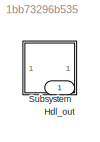
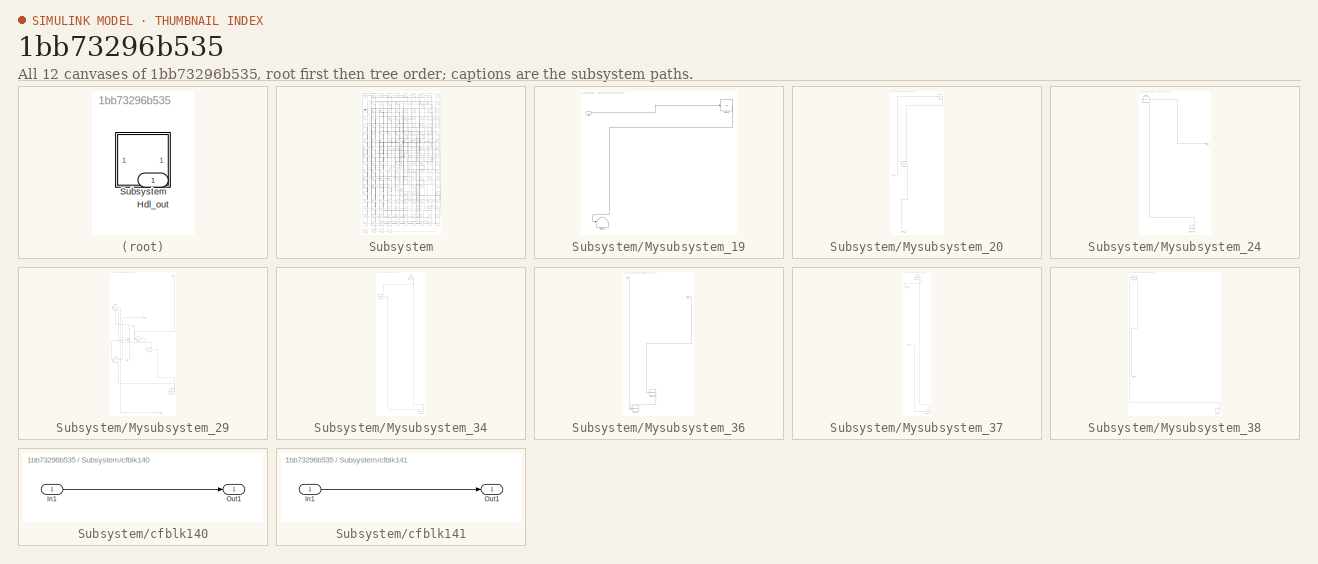
[diagram: thumbnail index - all 12 canvases of the model, root first then tree order]
MODEL slx_1bb73296b535
KIND model
CONFIG AbsTol = auto
CONFIG EnableMultiTasking = off
CONFIG FixedStep = auto
CONFIG MaxStep = auto
CONFIG MinStep = auto
CONFIG RelTol = 1e-3
CONFIG SampleTimeConstraint = Unconstrained
CONFIG SolverName = VariableStepAuto
CONFIG StartTime = 0.0
CONFIG StopTime = 10.0
BLOCK [Outport] Hdl_out
  OutDataTypeStr = uint8
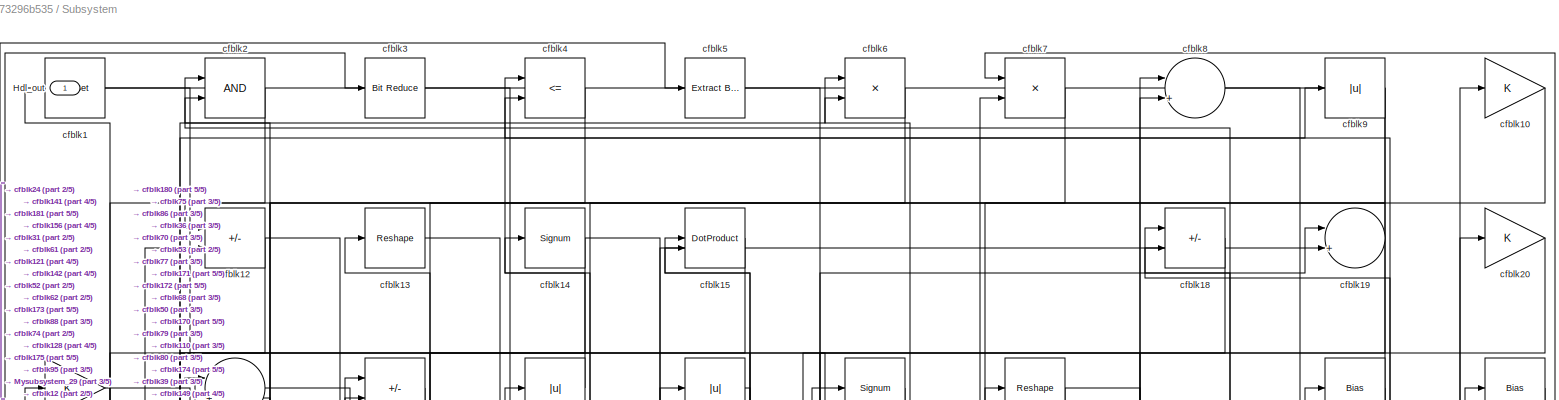
[diagram: Subsystem - part 1/5, full width, top band]
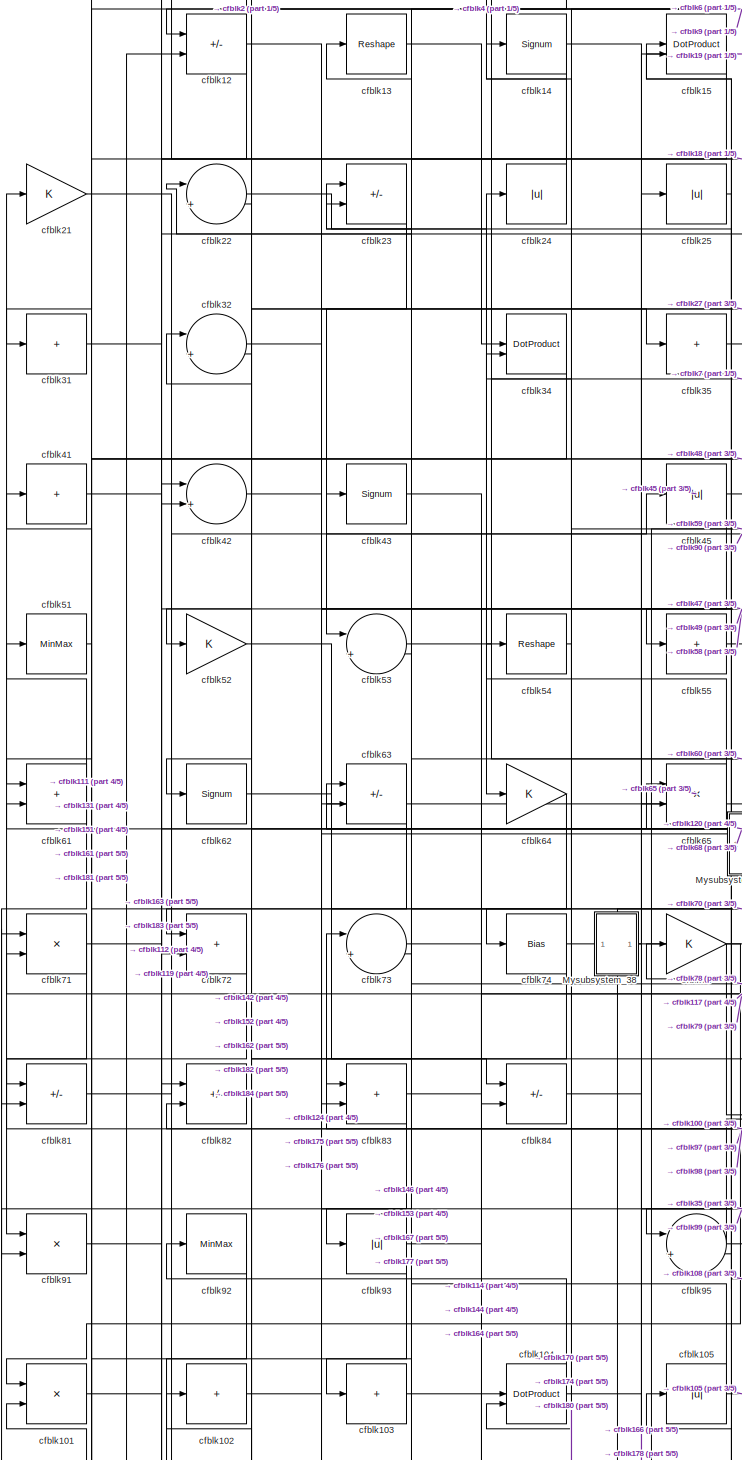
[diagram: Subsystem - part 2/5, top left region]
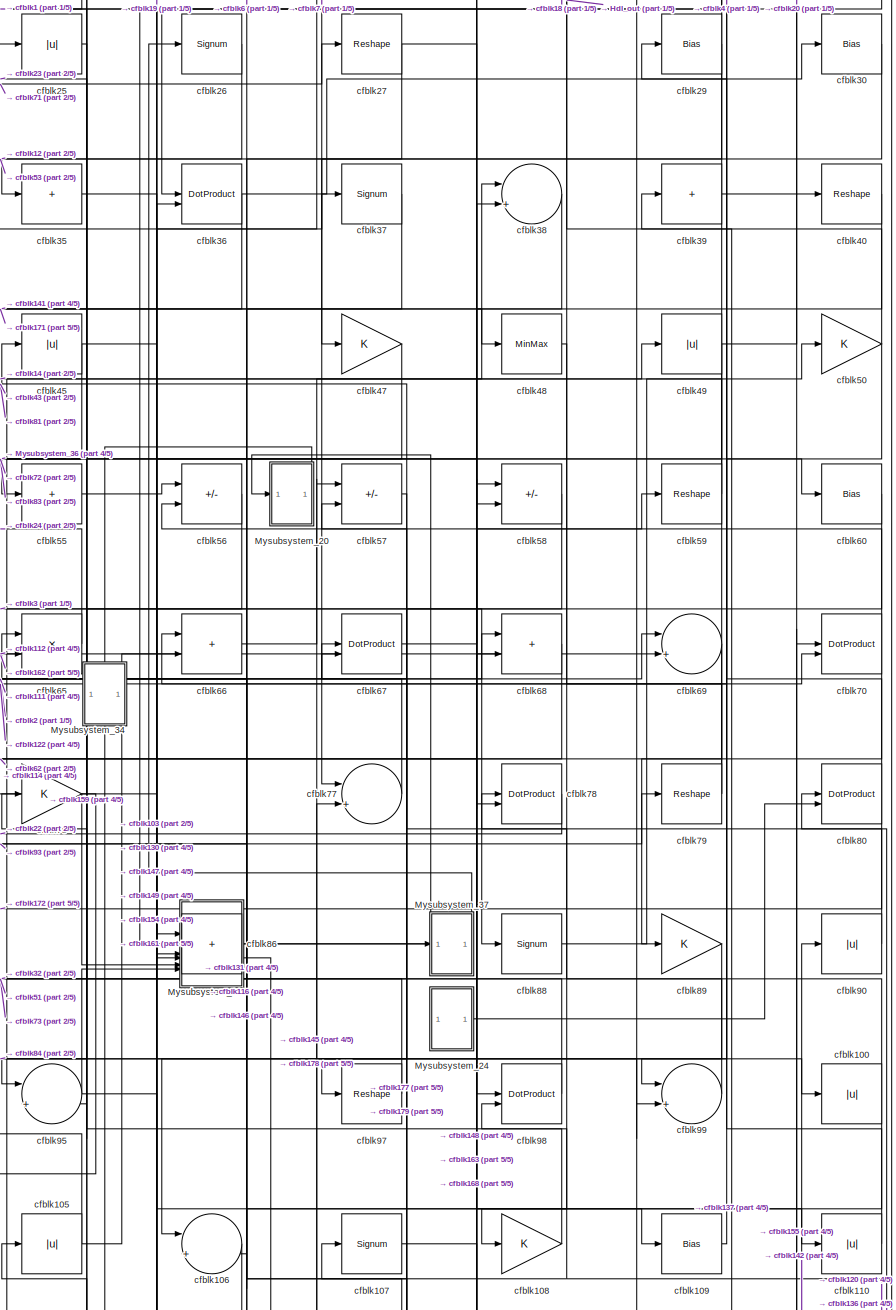
[diagram: Subsystem - part 3/5, middle right region]
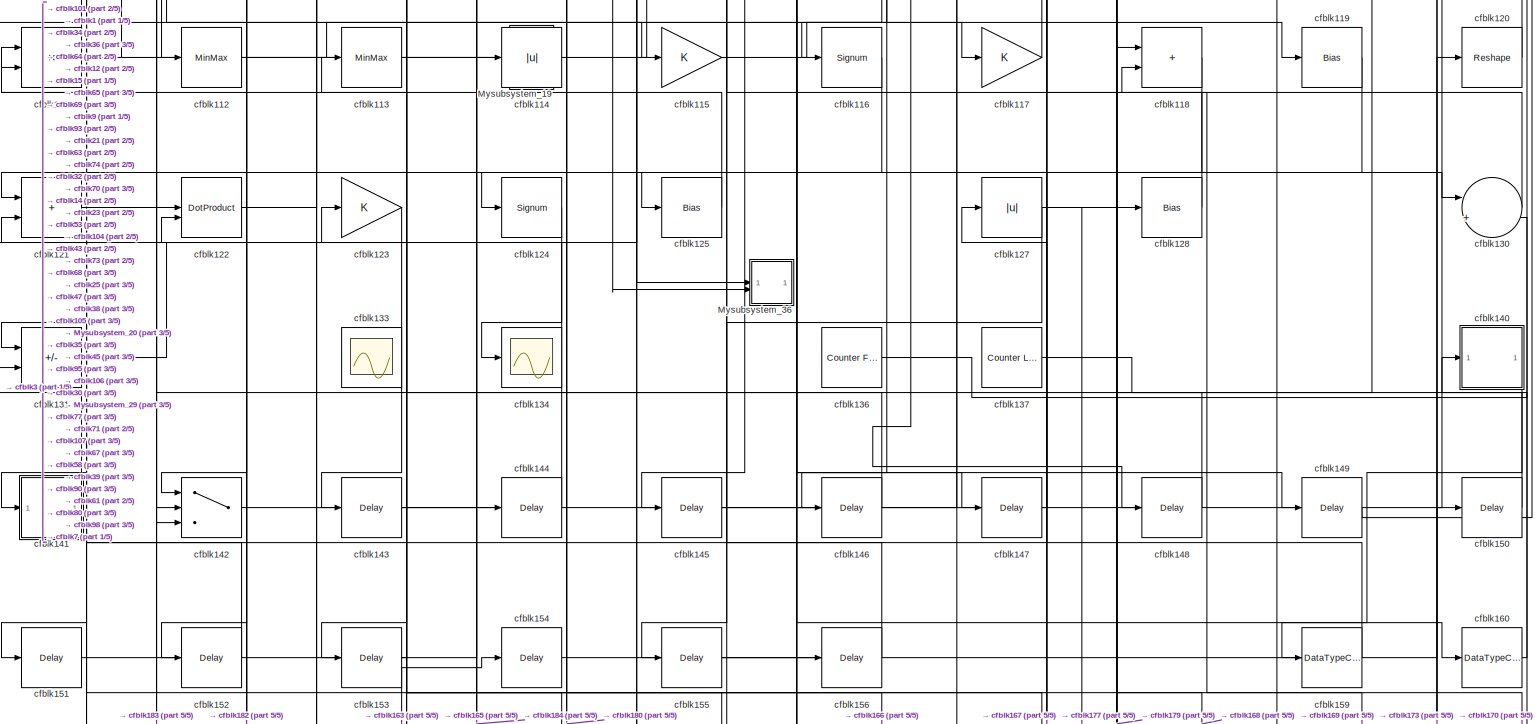
[diagram: Subsystem - part 4/5, full width, bottom band]
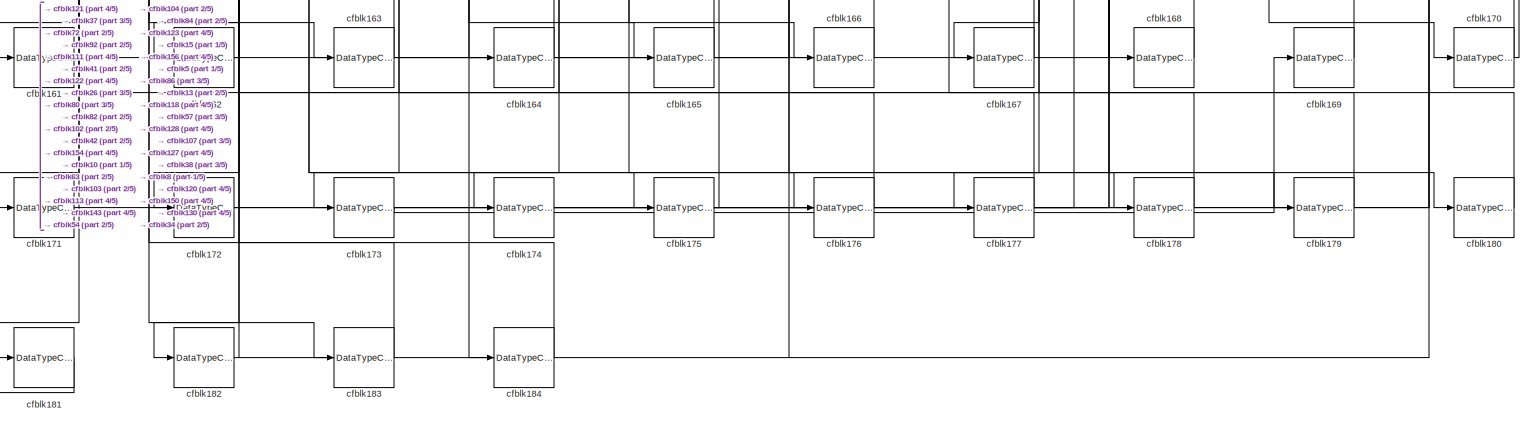
[diagram: Subsystem - part 5/5, full width, bottom band]
BLOCK [SubSystem] Subsystem
BLOCK [Outport] Subsystem/Hdl_out
  OutDataTypeStr = uint8
BLOCK [SubSystem] Subsystem/Mysubsystem_19
  RTWFcnName = Mysubsystem_19
  RTWFcnNameOpts = User specified
  RTWFileNameOpts = Use function name
  RTWSystemCode = Reusable function
  TreatAsAtomicUnit = on
BLOCK [Inport] Subsystem/Mysubsystem_19/In1
BLOCK [Terminator] Subsystem/Mysubsystem_19/cfblk132
BLOCK [Abs] Subsystem/Mysubsystem_19/cfblk96
  SaturateOnIntegerOverflow = off
BLOCK [SubSystem] Subsystem/Mysubsystem_20
  RTWFcnName = Mysubsystem_20
  RTWFcnNameOpts = User specified
  RTWFileNameOpts = Use function name
  RTWSystemCode = Reusable function
  TreatAsAtomicUnit = on
BLOCK [Inport] Subsystem/Mysubsystem_20/In1
BLOCK [Outport] Subsystem/Mysubsystem_20/Out1
BLOCK [Bias] Subsystem/Mysubsystem_20/cfblk28
  Bias = 0.0
  SaturateOnIntegerOverflow = off
BLOCK [Signum] Subsystem/Mysubsystem_20/cfblk85
BLOCK [SubSystem] Subsystem/Mysubsystem_24
  RTWFcnName = Mysubsystem_24
  RTWFcnNameOpts = User specified
  RTWFileNameOpts = Use function name
  RTWSystemCode = Reusable function
  TreatAsAtomicUnit = on
BLOCK [Outport] Subsystem/Mysubsystem_24/Out1
BLOCK [Reference] Subsystem/Mysubsystem_24/cfblk139  REF=hdlsllib/Sources/Counter
Free-Running
  SourceBlock = hdlsllib/Sources/Counter\nFree-Running
  SourceType = Counter Free-Running
BLOCK [Abs] Subsystem/Mysubsystem_24/cfblk46
  SaturateOnIntegerOverflow = off
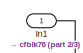
[diagram: Subsystem/Mysubsystem_29 - part 1/3, top right region]
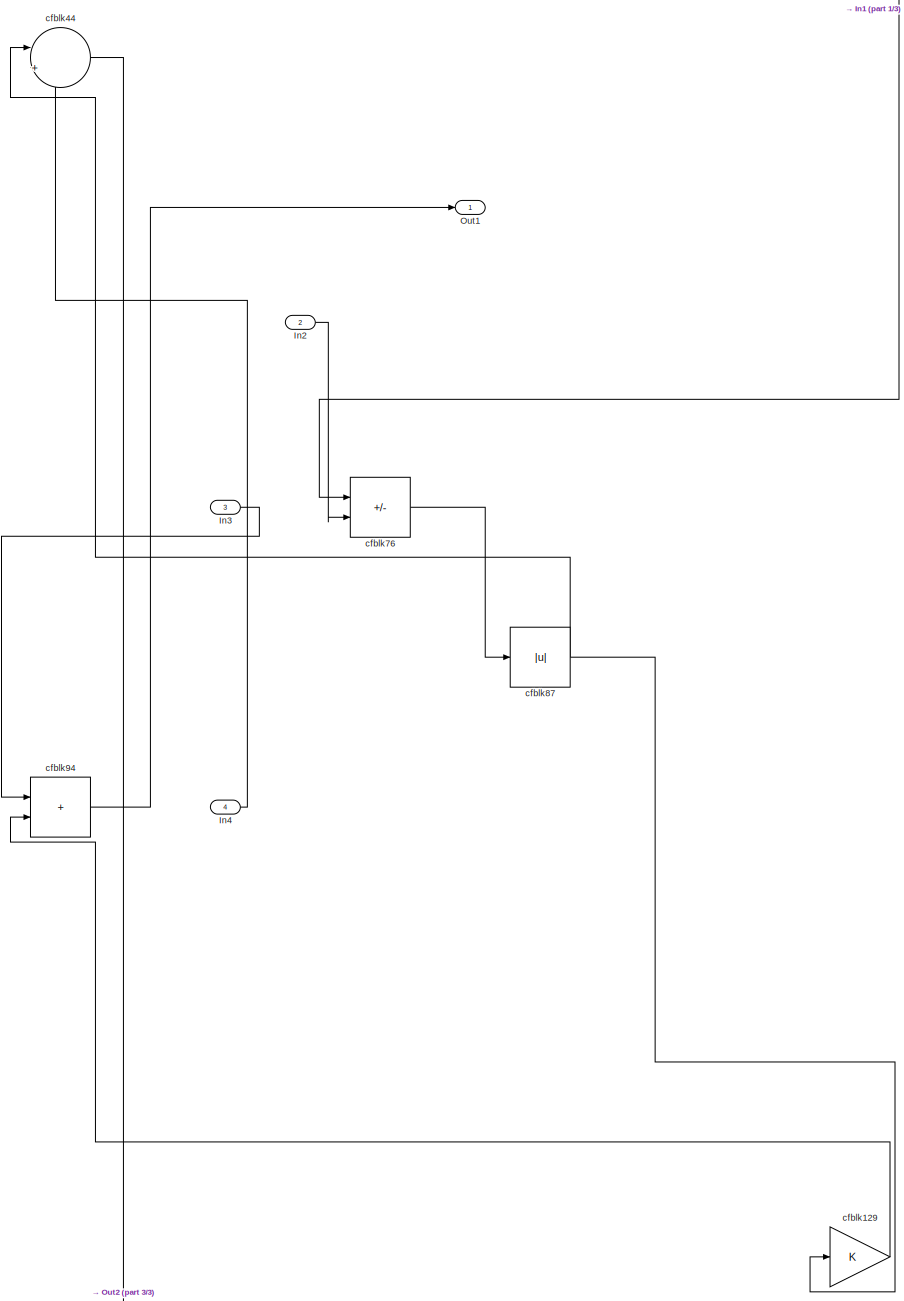
[diagram: Subsystem/Mysubsystem_29 - part 2/3, full width, middle band]
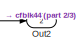
[diagram: Subsystem/Mysubsystem_29 - part 3/3, bottom right region]
BLOCK [SubSystem] Subsystem/Mysubsystem_29
  RTWFcnName = Mysubsystem_29
  RTWFcnNameOpts = User specified
  RTWFileNameOpts = Use function name
  RTWSystemCode = Reusable function
  TreatAsAtomicUnit = on
BLOCK [Inport] Subsystem/Mysubsystem_29/In1
BLOCK [Inport] Subsystem/Mysubsystem_29/In2
  Port = 2
BLOCK [Inport] Subsystem/Mysubsystem_29/In3
  Port = 3
BLOCK [Inport] Subsystem/Mysubsystem_29/In4
  Port = 4
BLOCK [Outport] Subsystem/Mysubsystem_29/Out1
BLOCK [Outport] Subsystem/Mysubsystem_29/Out2
  Port = 2
BLOCK [Gain] Subsystem/Mysubsystem_29/cfblk129
BLOCK [Sum] Subsystem/Mysubsystem_29/cfblk44
  Inputs = |++
BLOCK [Sum] Subsystem/Mysubsystem_29/cfblk76
  IconShape = rectangular
  Inputs = +-
BLOCK [Abs] Subsystem/Mysubsystem_29/cfblk87
  SaturateOnIntegerOverflow = off
BLOCK [Sum] Subsystem/Mysubsystem_29/cfblk94
  IconShape = rectangular
BLOCK [SubSystem] Subsystem/Mysubsystem_34
  RTWFcnName = Mysubsystem_34
  RTWFcnNameOpts = User specified
  RTWFileNameOpts = Use function name
  RTWSystemCode = Reusable function
  TreatAsAtomicUnit = on
BLOCK [Delay] Subsystem/Mysubsystem_34/cfblk157
  InputPortMap = u0
  SampleTime = 1
BLOCK [MinMax] Subsystem/Mysubsystem_34/cfblk16
BLOCK [Signum] Subsystem/Mysubsystem_34/cfblk33
BLOCK [SubSystem] Subsystem/Mysubsystem_36
  RTWFcnName = Mysubsystem_36
  RTWFcnNameOpts = User specified
  RTWFileNameOpts = Use function name
  RTWSystemCode = Reusable function
  TreatAsAtomicUnit = on
BLOCK [Inport] Subsystem/Mysubsystem_36/In1
BLOCK [Inport] Subsystem/Mysubsystem_36/In2
  Port = 2
BLOCK [Signum] Subsystem/Mysubsystem_36/cfblk126
BLOCK [Record] Subsystem/Mysubsystem_36/cfblk135
  CompatibilityTag = XY
  FileSettingsInternal = {"entries":[{"content":{"excelSettings":{"content":{},"type":"Streamout.ExcelSettings"}},"type":"Streamout.FileSettingStorage","uuid":""}],"packageUris":["http:\/\/schema.mathworks.com\/mf0\/streamout_blocks\/R2020a"],"version":"1.0"}
  Layout = [1 1]
  SignalsInternal = {"entries":[{"content":{},"type":"RecordBlkView.InputSignals","uuid":""}],"packageUris":["http:\/\/schema.mathworks.com\/mf0\/streamout_blocks\/R2020a"],"version":"1.0"}
  VisualizationBindings = {"xyplotplugin":{"info":[{"series":[],"subplotID":1}]}}
  st = -1
BLOCK [SubSystem] Subsystem/Mysubsystem_37
  RTWFcnName = Mysubsystem_37
  RTWFcnNameOpts = User specified
  RTWFileNameOpts = Use function name
  RTWSystemCode = Reusable function
  TreatAsAtomicUnit = on
BLOCK [Inport] Subsystem/Mysubsystem_37/In1
BLOCK [Outport] Subsystem/Mysubsystem_37/Out1
BLOCK [Delay] Subsystem/Mysubsystem_37/cfblk158
  InputPortMap = u0
  SampleTime = 1
BLOCK [Reshape] Subsystem/Mysubsystem_37/cfblk17
BLOCK [SubSystem] Subsystem/Mysubsystem_38
  RTWFcnName = Mysubsystem_38
  RTWFcnNameOpts = User specified
  RTWFileNameOpts = Use function name
  RTWSystemCode = Reusable function
  TreatAsAtomicUnit = on
BLOCK [Outport] Subsystem/Mysubsystem_38/Out1
BLOCK [Reshape] Subsystem/Mysubsystem_38/cfblk11
BLOCK [Constant] Subsystem/Mysubsystem_38/cfblk138
  SampleTime = -1
BLOCK [Reference] Subsystem/cfblk1  REF=simulink/Logic and Bit
Operations/Bit Set
  LibrarySourceBlock = hdlsllib/Logic and Bit\nOperations/Bit Set
  SourceBlock = simulink/Logic and Bit\nOperations/Bit Set
  SourceType = Bit Set
BLOCK [Gain] Subsystem/cfblk10
  OutDataTypeStr = uint8
BLOCK [Abs] Subsystem/cfblk100
  OutDataTypeStr = uint8
  SaturateOnIntegerOverflow = off
BLOCK [Product] Subsystem/cfblk101
  Inputs = */
  OutDataTypeStr = uint8
  RndMeth = Zero
  SaturateOnIntegerOverflow = on
BLOCK [Sum] Subsystem/cfblk102
  IconShape = rectangular
  Inputs = +
  OutDataTypeStr = uint8
BLOCK [Sum] Subsystem/cfblk103
  IconShape = rectangular
  Inputs = +
  OutDataTypeStr = uint8
BLOCK [DotProduct] Subsystem/cfblk104
  OutDataTypeStr = uint8
BLOCK [Abs] Subsystem/cfblk105
  OutDataTypeStr = uint8
  SaturateOnIntegerOverflow = off
BLOCK [Sum] Subsystem/cfblk106
  Inputs = |++
  OutDataTypeStr = uint8
BLOCK [Signum] Subsystem/cfblk107
BLOCK [Gain] Subsystem/cfblk108
  OutDataTypeStr = uint8
BLOCK [Bias] Subsystem/cfblk109
  Bias = 0.0
  SaturateOnIntegerOverflow = off
BLOCK [Abs] Subsystem/cfblk110
  OutDataTypeStr = uint8
  SaturateOnIntegerOverflow = off
BLOCK [Product] Subsystem/cfblk111
  Inputs = */
  OutDataTypeStr = uint8
  RndMeth = Zero
  SaturateOnIntegerOverflow = on
BLOCK [MinMax] Subsystem/cfblk112
  OutDataTypeStr = uint8
BLOCK [MinMax] Subsystem/cfblk113
  OutDataTypeStr = uint8
BLOCK [Abs] Subsystem/cfblk114
  OutDataTypeStr = uint8
  SaturateOnIntegerOverflow = off
BLOCK [Gain] Subsystem/cfblk115
  OutDataTypeStr = uint8
BLOCK [Signum] Subsystem/cfblk116
BLOCK [Gain] Subsystem/cfblk117
  OutDataTypeStr = uint8
BLOCK [Sum] Subsystem/cfblk118
  IconShape = rectangular
  OutDataTypeStr = uint8
BLOCK [Bias] Subsystem/cfblk119
  Bias = 0.0
  SaturateOnIntegerOverflow = off
BLOCK [Sum] Subsystem/cfblk12
  IconShape = rectangular
  Inputs = +-
  OutDataTypeStr = uint8
BLOCK [Reshape] Subsystem/cfblk120
BLOCK [Sum] Subsystem/cfblk121
  IconShape = rectangular
  OutDataTypeStr = uint8
BLOCK [DotProduct] Subsystem/cfblk122
  OutDataTypeStr = uint8
BLOCK [Gain] Subsystem/cfblk123
  OutDataTypeStr = uint8
BLOCK [Signum] Subsystem/cfblk124
BLOCK [Bias] Subsystem/cfblk125
  Bias = 0.0
  SaturateOnIntegerOverflow = off
BLOCK [Abs] Subsystem/cfblk127
  OutDataTypeStr = uint8
  SaturateOnIntegerOverflow = off
BLOCK [Bias] Subsystem/cfblk128
  Bias = 0.0
  SaturateOnIntegerOverflow = off
BLOCK [Reshape] Subsystem/cfblk13
BLOCK [Sum] Subsystem/cfblk130
  Inputs = |++
  OutDataTypeStr = uint8
BLOCK [Sum] Subsystem/cfblk131
  IconShape = rectangular
  Inputs = +-
  OutDataTypeStr = uint8
BLOCK [Scope] Subsystem/cfblk133
  Floating = on
  NumInputPorts = 1
  ScopeSpecificationString = Simulink.scopes.TimeScopeBlockCfg('CurrentConfiguration', extmgr.ConfigurationSet(extmgr.Configuration('Core','General UI',true,'FigureColor',[0.156862745098039 0.156862745098039 0.156862745098039]),extmgr.Configuration('Core','Source UI',true),extmgr.Configuration('Sources','WiredSimulink',true,'DataLoggingVariableName','ScopeData1','DataLoggingSaveFormat','StructureWithTime','DataLoggingLimitDat...<+2713ch>
BLOCK [Scope] Subsystem/cfblk134
  Floating = off
  NumInputPorts = 1
  ScopeSpecificationString = Simulink.scopes.TimeScopeBlockCfg('CurrentConfiguration', extmgr.ConfigurationSet(extmgr.Configuration('Core','General UI',true),extmgr.Configuration('Core','Source UI',true),extmgr.Configuration('Sources','WiredSimulink',true,'DataLoggingSaveFormat','Array','DataLoggingLimitDataPoints',true,'DataLoggingDecimation','1'),extmgr.Configuration('Visuals','Time Domain',true,'DisplayPropertyDefaults',st...<+829ch>
BLOCK [Reference] Subsystem/cfblk136  REF=hdlsllib/Sources/Counter
Free-Running
  SourceBlock = hdlsllib/Sources/Counter\nFree-Running
  SourceType = Counter Free-Running
BLOCK [Reference] Subsystem/cfblk137  REF=hdlsllib/Sources/Counter
Limited
  SourceBlock = hdlsllib/Sources/Counter\nLimited
  SourceType = Counter Limited
BLOCK [Signum] Subsystem/cfblk14
BLOCK [SubSystem] Subsystem/cfblk140
  LibrarySourceBlock = hdlsllib/Ports &\nSubsystems/Subsystem
BLOCK [Inport] Subsystem/cfblk140/In1
BLOCK [Outport] Subsystem/cfblk140/Out1
BLOCK [SubSystem] Subsystem/cfblk141
  LibrarySourceBlock = hdlsllib/Ports &\nSubsystems/Subsystem
BLOCK [Inport] Subsystem/cfblk141/In1
BLOCK [Outport] Subsystem/cfblk141/Out1
BLOCK [Switch] Subsystem/cfblk142
  InputSameDT = off
  OutDataTypeStr = uint8
  SaturateOnIntegerOverflow = off
BLOCK [Delay] Subsystem/cfblk143
  InputPortMap = u0
  SampleTime = 1
BLOCK [Delay] Subsystem/cfblk144
  InputPortMap = u0
  SampleTime = 1
BLOCK [Delay] Subsystem/cfblk145
  InputPortMap = u0
  SampleTime = 1
BLOCK [Delay] Subsystem/cfblk146
  InputPortMap = u0
  SampleTime = 1
BLOCK [Delay] Subsystem/cfblk147
  InputPortMap = u0
  SampleTime = 1
BLOCK [Delay] Subsystem/cfblk148
  InputPortMap = u0
  SampleTime = 1
BLOCK [Delay] Subsystem/cfblk149
  InputPortMap = u0
  SampleTime = 1
BLOCK [DotProduct] Subsystem/cfblk15
  OutDataTypeStr = uint8
BLOCK [Delay] Subsystem/cfblk150
  InputPortMap = u0
  SampleTime = 1
BLOCK [Delay] Subsystem/cfblk151
  InputPortMap = u0
  SampleTime = 1
BLOCK [Delay] Subsystem/cfblk152
  InputPortMap = u0
  SampleTime = 1
BLOCK [Delay] Subsystem/cfblk153
  InputPortMap = u0
  SampleTime = 1
BLOCK [Delay] Subsystem/cfblk154
  InputPortMap = u0
  SampleTime = 1
BLOCK [Delay] Subsystem/cfblk155
  InputPortMap = u0
  SampleTime = 1
BLOCK [Delay] Subsystem/cfblk156
  InputPortMap = u0
  SampleTime = 1
BLOCK [DataTypeConversion] Subsystem/cfblk159
  OutDataTypeStr = uint8
  RndMeth = Floor
  SaturateOnIntegerOverflow = off
BLOCK [DataTypeConversion] Subsystem/cfblk160
  OutDataTypeStr = uint8
  RndMeth = Floor
  SaturateOnIntegerOverflow = off
BLOCK [DataTypeConversion] Subsystem/cfblk161
  OutDataTypeStr = uint8
  RndMeth = Floor
  SaturateOnIntegerOverflow = off
BLOCK [DataTypeConversion] Subsystem/cfblk162
  OutDataTypeStr = uint8
  RndMeth = Floor
  SaturateOnIntegerOverflow = off
BLOCK [DataTypeConversion] Subsystem/cfblk163
  OutDataTypeStr = uint8
  RndMeth = Floor
  SaturateOnIntegerOverflow = off
BLOCK [DataTypeConversion] Subsystem/cfblk164
  OutDataTypeStr = uint8
  RndMeth = Floor
  SaturateOnIntegerOverflow = off
BLOCK [DataTypeConversion] Subsystem/cfblk165
  OutDataTypeStr = uint8
  RndMeth = Floor
  SaturateOnIntegerOverflow = off
BLOCK [DataTypeConversion] Subsystem/cfblk166
  OutDataTypeStr = uint8
  RndMeth = Floor
  SaturateOnIntegerOverflow = off
BLOCK [DataTypeConversion] Subsystem/cfblk167
  OutDataTypeStr = uint8
  RndMeth = Floor
  SaturateOnIntegerOverflow = off
BLOCK [DataTypeConversion] Subsystem/cfblk168
  OutDataTypeStr = uint8
  RndMeth = Floor
  SaturateOnIntegerOverflow = off
BLOCK [DataTypeConversion] Subsystem/cfblk169
  OutDataTypeStr = uint8
  RndMeth = Floor
  SaturateOnIntegerOverflow = off
BLOCK [DataTypeConversion] Subsystem/cfblk170
  OutDataTypeStr = uint8
  RndMeth = Floor
  SaturateOnIntegerOverflow = off
BLOCK [DataTypeConversion] Subsystem/cfblk171
  OutDataTypeStr = uint8
  RndMeth = Floor
  SaturateOnIntegerOverflow = off
BLOCK [DataTypeConversion] Subsystem/cfblk172
  OutDataTypeStr = uint8
  RndMeth = Floor
  SaturateOnIntegerOverflow = off
BLOCK [DataTypeConversion] Subsystem/cfblk173
  OutDataTypeStr = uint8
  RndMeth = Floor
  SaturateOnIntegerOverflow = off
BLOCK [DataTypeConversion] Subsystem/cfblk174
  OutDataTypeStr = uint8
  RndMeth = Floor
  SaturateOnIntegerOverflow = off
BLOCK [DataTypeConversion] Subsystem/cfblk175
  OutDataTypeStr = uint8
  RndMeth = Floor
  SaturateOnIntegerOverflow = off
BLOCK [DataTypeConversion] Subsystem/cfblk176
  OutDataTypeStr = uint8
  RndMeth = Floor
  SaturateOnIntegerOverflow = off
BLOCK [DataTypeConversion] Subsystem/cfblk177
  OutDataTypeStr = uint8
  RndMeth = Floor
  SaturateOnIntegerOverflow = off
BLOCK [DataTypeConversion] Subsystem/cfblk178
  OutDataTypeStr = uint8
  RndMeth = Floor
  SaturateOnIntegerOverflow = off
BLOCK [DataTypeConversion] Subsystem/cfblk179
  OutDataTypeStr = uint8
  RndMeth = Floor
  SaturateOnIntegerOverflow = off
BLOCK [Sum] Subsystem/cfblk18
  IconShape = rectangular
  Inputs = +-
  OutDataTypeStr = uint8
BLOCK [DataTypeConversion] Subsystem/cfblk180
  OutDataTypeStr = uint8
  RndMeth = Floor
  SaturateOnIntegerOverflow = off
BLOCK [DataTypeConversion] Subsystem/cfblk181
  OutDataTypeStr = uint8
  RndMeth = Floor
  SaturateOnIntegerOverflow = off
BLOCK [DataTypeConversion] Subsystem/cfblk182
  OutDataTypeStr = uint8
  RndMeth = Floor
  SaturateOnIntegerOverflow = off
BLOCK [DataTypeConversion] Subsystem/cfblk183
  OutDataTypeStr = uint8
  RndMeth = Floor
  SaturateOnIntegerOverflow = off
BLOCK [DataTypeConversion] Subsystem/cfblk184
  OutDataTypeStr = uint8
  RndMeth = Floor
  SaturateOnIntegerOverflow = off
BLOCK [Sum] Subsystem/cfblk19
  Inputs = |++
  OutDataTypeStr = uint8
BLOCK [Logic] Subsystem/cfblk2
  AllPortsSameDT = off
  OutDataTypeStr = boolean
BLOCK [Gain] Subsystem/cfblk20
  OutDataTypeStr = uint8
BLOCK [Gain] Subsystem/cfblk21
  OutDataTypeStr = uint8
BLOCK [Sum] Subsystem/cfblk22
  Inputs = |++
  OutDataTypeStr = uint8
BLOCK [Sum] Subsystem/cfblk23
  IconShape = rectangular
  Inputs = +-
  OutDataTypeStr = uint8
BLOCK [Abs] Subsystem/cfblk24
  OutDataTypeStr = uint8
  SaturateOnIntegerOverflow = off
BLOCK [Abs] Subsystem/cfblk25
  OutDataTypeStr = uint8
  SaturateOnIntegerOverflow = off
BLOCK [Signum] Subsystem/cfblk26
BLOCK [Reshape] Subsystem/cfblk27
BLOCK [Bias] Subsystem/cfblk29
  Bias = 0.0
  SaturateOnIntegerOverflow = off
BLOCK [Reference] Subsystem/cfblk3  REF=hdlsllib/Logic and Bit
Operations/Bit Reduce
  SourceBlock = hdlsllib/Logic and Bit\nOperations/Bit Reduce
  SourceType = Bit Reduce
BLOCK [Bias] Subsystem/cfblk30
  Bias = 0.0
  SaturateOnIntegerOverflow = off
BLOCK [Sum] Subsystem/cfblk31
  IconShape = rectangular
  Inputs = +
  OutDataTypeStr = uint8
BLOCK [Sum] Subsystem/cfblk32
  Inputs = |++
  OutDataTypeStr = uint8
BLOCK [DotProduct] Subsystem/cfblk34
  OutDataTypeStr = uint8
BLOCK [Sum] Subsystem/cfblk35
  IconShape = rectangular
  Inputs = +
  OutDataTypeStr = uint8
BLOCK [DotProduct] Subsystem/cfblk36
  OutDataTypeStr = uint8
BLOCK [Signum] Subsystem/cfblk37
BLOCK [Sum] Subsystem/cfblk38
  Inputs = |++
  OutDataTypeStr = uint8
BLOCK [Sum] Subsystem/cfblk39
  IconShape = rectangular
  Inputs = +
  OutDataTypeStr = uint8
BLOCK [RelationalOperator] Subsystem/cfblk4
  InputSameDT = off
  Operator = <=
  OutDataTypeStr = boolean
BLOCK [Reshape] Subsystem/cfblk40
BLOCK [Sum] Subsystem/cfblk41
  IconShape = rectangular
  Inputs = +
  OutDataTypeStr = uint8
BLOCK [Sum] Subsystem/cfblk42
  Inputs = |++
  OutDataTypeStr = uint8
BLOCK [Signum] Subsystem/cfblk43
BLOCK [Abs] Subsystem/cfblk45
  OutDataTypeStr = uint8
  SaturateOnIntegerOverflow = off
BLOCK [Gain] Subsystem/cfblk47
  OutDataTypeStr = uint8
BLOCK [MinMax] Subsystem/cfblk48
  OutDataTypeStr = uint8
BLOCK [Abs] Subsystem/cfblk49
  OutDataTypeStr = uint8
  SaturateOnIntegerOverflow = off
BLOCK [Reference] Subsystem/cfblk5  REF=simulink/Logic and Bit
Operations/Extract Bits
  LibrarySourceBlock = hdlsllib/Logic and Bit\nOperations/Extract Bits
  SourceBlock = simulink/Logic and Bit\nOperations/Extract Bits
  SourceType = Extract Bits
BLOCK [Gain] Subsystem/cfblk50
  OutDataTypeStr = uint8
BLOCK [MinMax] Subsystem/cfblk51
  OutDataTypeStr = uint8
BLOCK [Gain] Subsystem/cfblk52
  OutDataTypeStr = uint8
BLOCK [Sum] Subsystem/cfblk53
  Inputs = |++
  OutDataTypeStr = uint8
BLOCK [Reshape] Subsystem/cfblk54
BLOCK [Sum] Subsystem/cfblk55
  IconShape = rectangular
  Inputs = +
  OutDataTypeStr = uint8
BLOCK [Sum] Subsystem/cfblk56
  IconShape = rectangular
  Inputs = +-
  OutDataTypeStr = uint8
BLOCK [Sum] Subsystem/cfblk57
  IconShape = rectangular
  Inputs = +-
  OutDataTypeStr = uint8
BLOCK [Sum] Subsystem/cfblk58
  IconShape = rectangular
  Inputs = +-
  OutDataTypeStr = uint8
BLOCK [Reshape] Subsystem/cfblk59
BLOCK [Product] Subsystem/cfblk6
  Inputs = */
  OutDataTypeStr = uint8
  RndMeth = Zero
  SaturateOnIntegerOverflow = on
BLOCK [Bias] Subsystem/cfblk60
  Bias = 0.0
  SaturateOnIntegerOverflow = off
BLOCK [Sum] Subsystem/cfblk61
  IconShape = rectangular
  OutDataTypeStr = uint8
BLOCK [Signum] Subsystem/cfblk62
BLOCK [Sum] Subsystem/cfblk63
  IconShape = rectangular
  Inputs = +-
  OutDataTypeStr = uint8
BLOCK [Gain] Subsystem/cfblk64
  OutDataTypeStr = uint8
BLOCK [Product] Subsystem/cfblk65
  Inputs = */
  OutDataTypeStr = uint8
  RndMeth = Zero
  SaturateOnIntegerOverflow = on
BLOCK [Sum] Subsystem/cfblk66
  IconShape = rectangular
  OutDataTypeStr = uint8
BLOCK [DotProduct] Subsystem/cfblk67
  OutDataTypeStr = uint8
BLOCK [Sum] Subsystem/cfblk68
  IconShape = rectangular
  OutDataTypeStr = uint8
BLOCK [Sum] Subsystem/cfblk69
  Inputs = |++
  OutDataTypeStr = uint8
BLOCK [Product] Subsystem/cfblk7
  Inputs = */
  OutDataTypeStr = uint8
  RndMeth = Zero
  SaturateOnIntegerOverflow = on
BLOCK [DotProduct] Subsystem/cfblk70
  OutDataTypeStr = uint8
BLOCK [Product] Subsystem/cfblk71
  Inputs = */
  OutDataTypeStr = uint8
  RndMeth = Zero
  SaturateOnIntegerOverflow = on
BLOCK [Sum] Subsystem/cfblk72
  IconShape = rectangular
  OutDataTypeStr = uint8
BLOCK [Sum] Subsystem/cfblk73
  Inputs = |++
  OutDataTypeStr = uint8
BLOCK [Bias] Subsystem/cfblk74
  Bias = 0.0
  SaturateOnIntegerOverflow = off
BLOCK [Gain] Subsystem/cfblk75
  OutDataTypeStr = uint8
BLOCK [Sum] Subsystem/cfblk77
  Inputs = |++
  OutDataTypeStr = uint8
BLOCK [DotProduct] Subsystem/cfblk78
  OutDataTypeStr = uint8
BLOCK [Reshape] Subsystem/cfblk79
BLOCK [Sum] Subsystem/cfblk8
  Inputs = |++
  OutDataTypeStr = uint8
BLOCK [DotProduct] Subsystem/cfblk80
  OutDataTypeStr = uint8
BLOCK [Sum] Subsystem/cfblk81
  IconShape = rectangular
  Inputs = +-
  OutDataTypeStr = uint8
BLOCK [Sum] Subsystem/cfblk82
  IconShape = rectangular
  Inputs = +-
  OutDataTypeStr = uint8
BLOCK [Sum] Subsystem/cfblk83
  IconShape = rectangular
  OutDataTypeStr = uint8
BLOCK [Sum] Subsystem/cfblk84
  IconShape = rectangular
  Inputs = +-
  OutDataTypeStr = uint8
BLOCK [Sum] Subsystem/cfblk86
  IconShape = rectangular
  OutDataTypeStr = uint8
BLOCK [Signum] Subsystem/cfblk88
BLOCK [Gain] Subsystem/cfblk89
  OutDataTypeStr = uint8
BLOCK [Abs] Subsystem/cfblk9
  OutDataTypeStr = uint8
  SaturateOnIntegerOverflow = off
BLOCK [Abs] Subsystem/cfblk90
  OutDataTypeStr = uint8
  SaturateOnIntegerOverflow = off
BLOCK [Product] Subsystem/cfblk91
  Inputs = */
  OutDataTypeStr = uint8
  RndMeth = Zero
  SaturateOnIntegerOverflow = on
BLOCK [MinMax] Subsystem/cfblk92
  OutDataTypeStr = uint8
BLOCK [Abs] Subsystem/cfblk93
  OutDataTypeStr = uint8
  SaturateOnIntegerOverflow = off
BLOCK [Sum] Subsystem/cfblk95
  Inputs = |++
  OutDataTypeStr = uint8
BLOCK [Reshape] Subsystem/cfblk97
BLOCK [DotProduct] Subsystem/cfblk98
  OutDataTypeStr = uint8
BLOCK [Sum] Subsystem/cfblk99
  Inputs = |++
  OutDataTypeStr = uint8
LINE Subsystem/Mysubsystem_19/In1:1 -> Subsystem/Mysubsystem_19/cfblk96:1
LINE Subsystem/Mysubsystem_19/cfblk96:1 -> Subsystem/Mysubsystem_19/cfblk132:1
LINE Subsystem/Mysubsystem_20/In1:1 -> Subsystem/Mysubsystem_20/cfblk28:1
LINE Subsystem/Mysubsystem_20/cfblk28:1 -> Subsystem/Mysubsystem_20/cfblk85:1
LINE Subsystem/Mysubsystem_20/cfblk85:1 -> Subsystem/Mysubsystem_20/Out1:1
LINE Subsystem/Mysubsystem_20:1 -> Subsystem/cfblk145:1
LINE Subsystem/Mysubsystem_24/cfblk139:1 -> Subsystem/Mysubsystem_24/cfblk46:1
LINE Subsystem/Mysubsystem_24/cfblk46:1 -> Subsystem/Mysubsystem_24/Out1:1
LINE Subsystem/Mysubsystem_24:1 -> Subsystem/cfblk80:2
LINE Subsystem/Mysubsystem_29/In1:1 -> Subsystem/Mysubsystem_29/cfblk76:1
LINE Subsystem/Mysubsystem_29/In2:1 -> Subsystem/Mysubsystem_29/cfblk76:2
LINE Subsystem/Mysubsystem_29/In3:1 -> Subsystem/Mysubsystem_29/cfblk94:1
LINE Subsystem/Mysubsystem_29/In4:1 -> Subsystem/Mysubsystem_29/cfblk44:2
LINE Subsystem/Mysubsystem_29/cfblk129:1 -> Subsystem/Mysubsystem_29/cfblk94:2
LINE Subsystem/Mysubsystem_29/cfblk44:1 -> Subsystem/Mysubsystem_29/Out2:1
LINE Subsystem/Mysubsystem_29/cfblk76:1 -> Subsystem/Mysubsystem_29/cfblk87:1
NET Subsystem/Mysubsystem_29/cfblk87:1 -> Subsystem/Mysubsystem_29/cfblk129:1, Subsystem/Mysubsystem_29/cfblk44:1
LINE Subsystem/Mysubsystem_29/cfblk94:1 -> Subsystem/Mysubsystem_29/Out1:1
LINE Subsystem/Mysubsystem_29:1 -> Subsystem/Mysubsystem_20:1
LINE Subsystem/Mysubsystem_29:2 -> Subsystem/cfblk148:1
LINE Subsystem/Mysubsystem_34/cfblk157:1 -> Subsystem/Mysubsystem_34/cfblk16:1
LINE Subsystem/Mysubsystem_34/cfblk16:1 -> Subsystem/Mysubsystem_34/cfblk33:1
LINE Subsystem/Mysubsystem_34/cfblk33:1 -> Subsystem/Mysubsystem_34/cfblk157:1
LINE Subsystem/Mysubsystem_36/In1:1 -> Subsystem/Mysubsystem_36/cfblk135:2
LINE Subsystem/Mysubsystem_36/In2:1 -> Subsystem/Mysubsystem_36/cfblk126:1
LINE Subsystem/Mysubsystem_36/cfblk126:1 -> Subsystem/Mysubsystem_36/cfblk135:1
LINE Subsystem/Mysubsystem_37/In1:1 -> Subsystem/Mysubsystem_37/cfblk158:1
LINE Subsystem/Mysubsystem_37/cfblk158:1 -> Subsystem/Mysubsystem_37/cfblk17:1
LINE Subsystem/Mysubsystem_37/cfblk17:1 -> Subsystem/Mysubsystem_37/Out1:1
LINE Subsystem/Mysubsystem_37:1 -> Subsystem/cfblk26:1
LINE Subsystem/Mysubsystem_38/cfblk11:1 -> Subsystem/Mysubsystem_38/Out1:1
LINE Subsystem/Mysubsystem_38/cfblk138:1 -> Subsystem/Mysubsystem_38/cfblk11:1
LINE Subsystem/Mysubsystem_38:1 -> Subsystem/cfblk101:1
NET Subsystem/cfblk100:1 -> Subsystem/cfblk106:2, Subsystem/cfblk51:1
LINE Subsystem/cfblk101:1 -> Subsystem/cfblk42:1
LINE Subsystem/cfblk102:1 -> Subsystem/cfblk175:1
LINE Subsystem/cfblk103:1 -> Subsystem/cfblk164:1
NET Subsystem/cfblk104:1 -> Subsystem/cfblk166:1, Subsystem/cfblk32:2
NET Subsystem/cfblk105:1 -> Subsystem/cfblk66:2, Subsystem/cfblk73:2
LINE Subsystem/cfblk106:1 -> Subsystem/cfblk131:2
LINE Subsystem/cfblk107:1 -> Subsystem/cfblk168:1
LINE Subsystem/cfblk108:1 -> Subsystem/cfblk23:1
LINE Subsystem/cfblk109:1 -> Subsystem/cfblk29:1
LINE Subsystem/cfblk10:1 -> Subsystem/cfblk173:1
NET Subsystem/cfblk110:1 -> Subsystem/cfblk18:2, Subsystem/cfblk66:1
NET Subsystem/cfblk111:1 -> Subsystem/cfblk101:2, Subsystem/cfblk12:2, Subsystem/cfblk183:1, Subsystem/cfblk65:1, Subsystem/cfblk69:1
NET Subsystem/cfblk112:1 -> Subsystem/cfblk115:1, Subsystem/cfblk69:2
LINE Subsystem/cfblk113:1 -> Subsystem/cfblk165:1
LINE Subsystem/cfblk114:1 -> Subsystem/cfblk38:1
NET Subsystem/cfblk115:1 -> Subsystem/cfblk117:1, Subsystem/cfblk160:1
LINE Subsystem/cfblk116:1 -> Subsystem/cfblk125:1
NET Subsystem/cfblk117:1 -> Subsystem/cfblk63:1, Subsystem/cfblk71:2
LINE Subsystem/cfblk118:1 -> Subsystem/cfblk167:1
LINE Subsystem/cfblk119:1 -> Subsystem/cfblk121:1
NET Subsystem/cfblk120:1 -> Subsystem/cfblk61:2, Subsystem/cfblk98:2
NET Subsystem/cfblk121:1 -> Subsystem/Mysubsystem_19:1, Subsystem/cfblk9:1
LINE Subsystem/cfblk122:1 -> Subsystem/cfblk70:2
LINE Subsystem/cfblk123:1 -> Subsystem/cfblk143:1
LINE Subsystem/cfblk124:1 -> Subsystem/cfblk134:1
LINE Subsystem/cfblk125:1 -> Subsystem/cfblk111:1
NET Subsystem/cfblk127:1 -> Subsystem/cfblk155:1, Subsystem/cfblk179:1
LINE Subsystem/cfblk128:1 -> Subsystem/cfblk15:1
NET Subsystem/cfblk12:1 -> Subsystem/cfblk100:1, Subsystem/cfblk142:2, Subsystem/cfblk35:1, Subsystem/cfblk54:1
LINE Subsystem/cfblk130:1 -> Subsystem/cfblk107:1
LINE Subsystem/cfblk131:1 -> Subsystem/cfblk25:1
LINE Subsystem/cfblk136:1 -> Subsystem/cfblk80:1
LINE Subsystem/cfblk137:1 -> Subsystem/cfblk39:1
LINE Subsystem/cfblk13:1 -> Subsystem/cfblk34:1
LINE Subsystem/cfblk140/In1:1 -> Subsystem/cfblk140/Out1:1
LINE Subsystem/cfblk140:1 -> Subsystem/cfblk159:1
LINE Subsystem/cfblk141/In1:1 -> Subsystem/cfblk141/Out1:1
LINE Subsystem/cfblk141:1 -> Subsystem/cfblk3:1
LINE Subsystem/cfblk142:1 -> Subsystem/cfblk90:1
LINE Subsystem/cfblk143:1 -> Subsystem/cfblk184:1
LINE Subsystem/cfblk144:1 -> Subsystem/cfblk71:1
LINE Subsystem/cfblk145:1 -> Subsystem/cfblk77:2
LINE Subsystem/cfblk146:1 -> Subsystem/cfblk23:2
LINE Subsystem/cfblk147:1 -> Subsystem/cfblk67:2
LINE Subsystem/cfblk148:1 -> Subsystem/cfblk58:1
LINE Subsystem/cfblk149:1 -> Subsystem/cfblk7:1
NET Subsystem/cfblk14:1 -> Subsystem/cfblk153:1, Subsystem/cfblk48:1
LINE Subsystem/cfblk150:1 -> Subsystem/cfblk122:1
LINE Subsystem/cfblk151:1 -> Subsystem/cfblk104:1
LINE Subsystem/cfblk152:1 -> Subsystem/cfblk111:2
LINE Subsystem/cfblk153:1 -> Subsystem/cfblk53:2
LINE Subsystem/cfblk154:1 -> Subsystem/cfblk36:2
LINE Subsystem/cfblk155:1 -> Subsystem/cfblk70:1
LINE Subsystem/cfblk156:1 -> Subsystem/cfblk1:1
NET Subsystem/cfblk159:1 -> Subsystem/cfblk105:1, Subsystem/cfblk127:1
LINE Subsystem/cfblk15:1 -> Subsystem/cfblk142:3
LINE Subsystem/cfblk160:1 -> Subsystem/cfblk140:1
LINE Subsystem/cfblk161:1 -> Subsystem/cfblk86:1
LINE Subsystem/cfblk162:1 -> Subsystem/cfblk92:1
NET Subsystem/cfblk163:1 -> Subsystem/cfblk154:1, Subsystem/cfblk38:2
LINE Subsystem/cfblk164:1 -> Subsystem/cfblk41:1
LINE Subsystem/cfblk165:1 -> Subsystem/cfblk123:1
LINE Subsystem/cfblk166:1 -> Subsystem/cfblk113:1
LINE Subsystem/cfblk167:1 -> Subsystem/cfblk13:1
LINE Subsystem/cfblk168:1 -> Subsystem/cfblk118:1
LINE Subsystem/cfblk169:1 -> Subsystem/cfblk118:2
NET Subsystem/cfblk170:1 -> Subsystem/cfblk130:2, Subsystem/cfblk34:2
LINE Subsystem/cfblk171:1 -> Subsystem/cfblk8:1
LINE Subsystem/cfblk172:1 -> Subsystem/cfblk8:2
NET Subsystem/cfblk173:1 -> Subsystem/cfblk150:1, Subsystem/cfblk169:1
LINE Subsystem/cfblk174:1 -> Subsystem/cfblk10:1
LINE Subsystem/cfblk175:1 -> Subsystem/cfblk15:2
LINE Subsystem/cfblk176:1 -> Subsystem/cfblk102:1
NET Subsystem/cfblk177:1 -> Subsystem/cfblk128:1, Subsystem/cfblk63:2
LINE Subsystem/cfblk178:1 -> Subsystem/cfblk57:1
LINE Subsystem/cfblk179:1 -> Subsystem/cfblk57:2
NET Subsystem/cfblk180:1 -> Subsystem/cfblk104:2, Subsystem/cfblk121:2
LINE Subsystem/cfblk181:1 -> Subsystem/cfblk5:1
NET Subsystem/cfblk182:1 -> Subsystem/cfblk120:1, Subsystem/cfblk122:2, Subsystem/cfblk156:1
LINE Subsystem/cfblk183:1 -> Subsystem/cfblk82:1
LINE Subsystem/cfblk184:1 -> Subsystem/cfblk82:2
NET Subsystem/cfblk18:1 -> Subsystem/cfblk61:1, Subsystem/cfblk95:2
NET Subsystem/cfblk19:1 -> Subsystem/Mysubsystem_29:1, Subsystem/cfblk12:1
LINE Subsystem/cfblk1:1 -> Subsystem/cfblk36:1
NET Subsystem/cfblk20:1 -> Subsystem/cfblk68:2, Subsystem/cfblk86:2
LINE Subsystem/cfblk21:1 -> Subsystem/cfblk119:1
LINE Subsystem/cfblk22:1 -> Subsystem/cfblk64:1
LINE Subsystem/cfblk23:1 -> Subsystem/cfblk72:1
LINE Subsystem/cfblk24:1 -> Subsystem/cfblk4:1
LINE Subsystem/cfblk25:1 -> Subsystem/cfblk55:1
NET Subsystem/cfblk26:1 -> Subsystem/cfblk162:1, Subsystem/cfblk65:2
NET Subsystem/cfblk27:1 -> Subsystem/cfblk110:1, Subsystem/cfblk53:1
LINE Subsystem/cfblk29:1 -> Subsystem/cfblk47:1
LINE Subsystem/cfblk2:1 -> Subsystem/cfblk31:1
LINE Subsystem/cfblk30:1 -> Subsystem/cfblk116:1
LINE Subsystem/cfblk31:1 -> Subsystem/cfblk6:1
NET Subsystem/cfblk32:1 -> Subsystem/cfblk124:1, Subsystem/cfblk58:2
LINE Subsystem/cfblk34:1 -> Subsystem/cfblk151:1
LINE Subsystem/cfblk35:1 -> Subsystem/cfblk149:1
NET Subsystem/cfblk36:1 -> Subsystem/cfblk141:1, Subsystem/cfblk30:1
LINE Subsystem/cfblk37:1 -> Subsystem/cfblk171:1
LINE Subsystem/cfblk38:1 -> Subsystem/cfblk146:1
LINE Subsystem/cfblk39:1 -> Subsystem/cfblk20:1
LINE Subsystem/cfblk3:1 -> Subsystem/cfblk88:1
LINE Subsystem/cfblk40:1 -> Subsystem/cfblk78:2
LINE Subsystem/cfblk41:1 -> Subsystem/cfblk163:1
NET Subsystem/cfblk42:1 -> Subsystem/cfblk176:1, Subsystem/cfblk22:2
LINE Subsystem/cfblk43:1 -> Subsystem/cfblk114:1
NET Subsystem/cfblk45:1 -> Subsystem/cfblk103:1, Subsystem/cfblk130:1, Subsystem/cfblk37:1, Subsystem/cfblk60:1, Subsystem/cfblk83:2
NET Subsystem/cfblk47:1 -> Subsystem/Mysubsystem_36:1, Subsystem/cfblk84:2
LINE Subsystem/cfblk48:1 -> Subsystem/cfblk108:1
NET Subsystem/cfblk49:1 -> Subsystem/cfblk40:1, Subsystem/cfblk72:2
LINE Subsystem/cfblk4:1 -> Subsystem/cfblk62:1
NET Subsystem/cfblk50:1 -> Subsystem/cfblk2:1, Subsystem/cfblk99:1
LINE Subsystem/cfblk51:1 -> Subsystem/cfblk91:1
LINE Subsystem/cfblk52:1 -> Subsystem/cfblk84:1
LINE Subsystem/cfblk53:1 -> Subsystem/cfblk7:2
LINE Subsystem/cfblk54:1 -> Subsystem/cfblk174:1
LINE Subsystem/cfblk55:1 -> Subsystem/cfblk56:1
LINE Subsystem/cfblk56:1 -> Subsystem/cfblk95:1
LINE Subsystem/cfblk57:1 -> Subsystem/cfblk177:1
LINE Subsystem/cfblk58:1 -> Subsystem/cfblk97:1
LINE Subsystem/cfblk59:1 -> Subsystem/cfblk14:1
LINE Subsystem/cfblk5:1 -> Subsystem/cfblk180:1
NET Subsystem/cfblk60:1 -> Subsystem/Mysubsystem_29:2, Subsystem/cfblk83:1
NET Subsystem/cfblk61:1 -> Subsystem/cfblk21:1, Subsystem/cfblk81:2
LINE Subsystem/cfblk62:1 -> Subsystem/cfblk98:1
LINE Subsystem/cfblk63:1 -> Subsystem/cfblk142:1
LINE Subsystem/cfblk64:1 -> Subsystem/cfblk131:1
LINE Subsystem/cfblk65:1 -> Subsystem/cfblk24:1
LINE Subsystem/cfblk66:1 -> Subsystem/cfblk49:1
LINE Subsystem/cfblk67:1 -> Subsystem/cfblk59:1
LINE Subsystem/cfblk68:1 -> Subsystem/Mysubsystem_36:2
LINE Subsystem/cfblk69:1 -> Subsystem/cfblk89:1
LINE Subsystem/cfblk6:1 -> Subsystem/cfblk52:1
NET Subsystem/cfblk70:1 -> Subsystem/cfblk6:2, Subsystem/cfblk93:1
NET Subsystem/cfblk71:1 -> Subsystem/cfblk27:1, Subsystem/cfblk81:1
LINE Subsystem/cfblk72:1 -> Subsystem/cfblk181:1
LINE Subsystem/cfblk73:1 -> Subsystem/cfblk144:1
NET Subsystem/cfblk74:1 -> Subsystem/cfblk152:1, Subsystem/cfblk19:2
NET Subsystem/cfblk75:1 -> Subsystem/Mysubsystem_29:3, Subsystem/cfblk109:1, Subsystem/cfblk19:1
NET Subsystem/cfblk77:1 -> Subsystem/cfblk2:2, Subsystem/cfblk67:1
LINE Subsystem/cfblk78:1 -> Subsystem/cfblk22:1
NET Subsystem/cfblk79:1 -> Subsystem/Hdl_out:1, Subsystem/cfblk18:1
LINE Subsystem/cfblk7:1 -> Subsystem/cfblk77:1
NET Subsystem/cfblk80:1 -> Subsystem/cfblk172:1, Subsystem/cfblk4:2
LINE Subsystem/cfblk81:1 -> Subsystem/cfblk45:1
LINE Subsystem/cfblk82:1 -> Subsystem/cfblk182:1
NET Subsystem/cfblk83:1 -> Subsystem/cfblk68:1, Subsystem/cfblk91:2
NET Subsystem/cfblk84:1 -> Subsystem/cfblk178:1, Subsystem/cfblk99:2
LINE Subsystem/cfblk86:1 -> Subsystem/Mysubsystem_37:1
LINE Subsystem/cfblk88:1 -> Subsystem/cfblk50:1
LINE Subsystem/cfblk89:1 -> Subsystem/cfblk106:1
LINE Subsystem/cfblk8:1 -> Subsystem/cfblk170:1
LINE Subsystem/cfblk90:1 -> Subsystem/cfblk43:1
LINE Subsystem/cfblk91:1 -> Subsystem/cfblk42:2
LINE Subsystem/cfblk92:1 -> Subsystem/cfblk161:1
NET Subsystem/cfblk93:1 -> Subsystem/cfblk112:1, Subsystem/cfblk79:1
NET Subsystem/cfblk95:1 -> Subsystem/Mysubsystem_29:4, Subsystem/cfblk147:1
NET Subsystem/cfblk97:1 -> Subsystem/cfblk73:1, Subsystem/cfblk75:1
NET Subsystem/cfblk98:1 -> Subsystem/cfblk32:1, Subsystem/cfblk56:2
LINE Subsystem/cfblk99:1 -> Subsystem/cfblk78:1
LINE Subsystem/cfblk9:1 -> Subsystem/cfblk74:1
note: NET lines group one-source signal fan-out (src -> all destinations, sorted); 1:1 wires keep LINE
